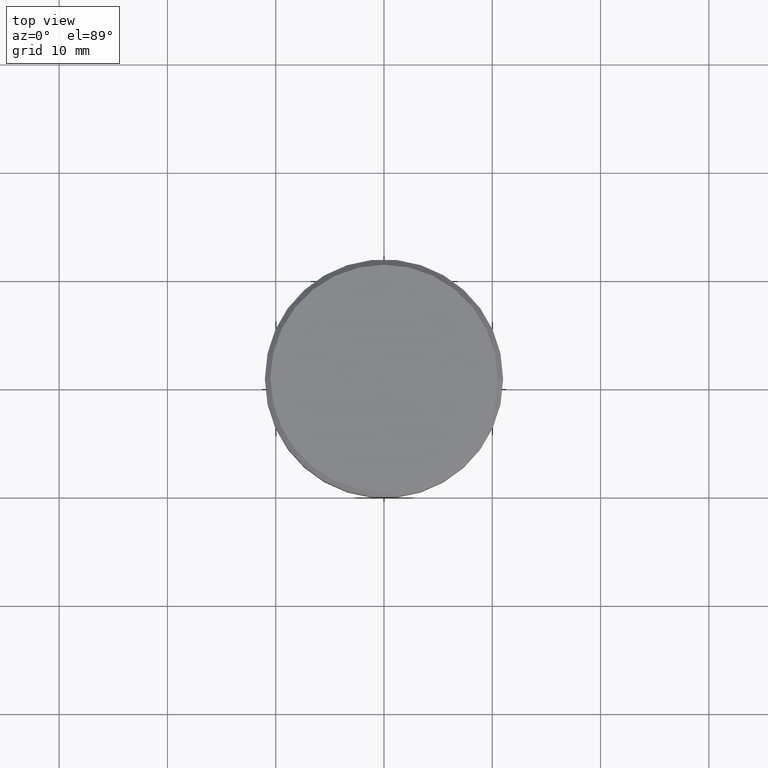
[diagram: clean part render]
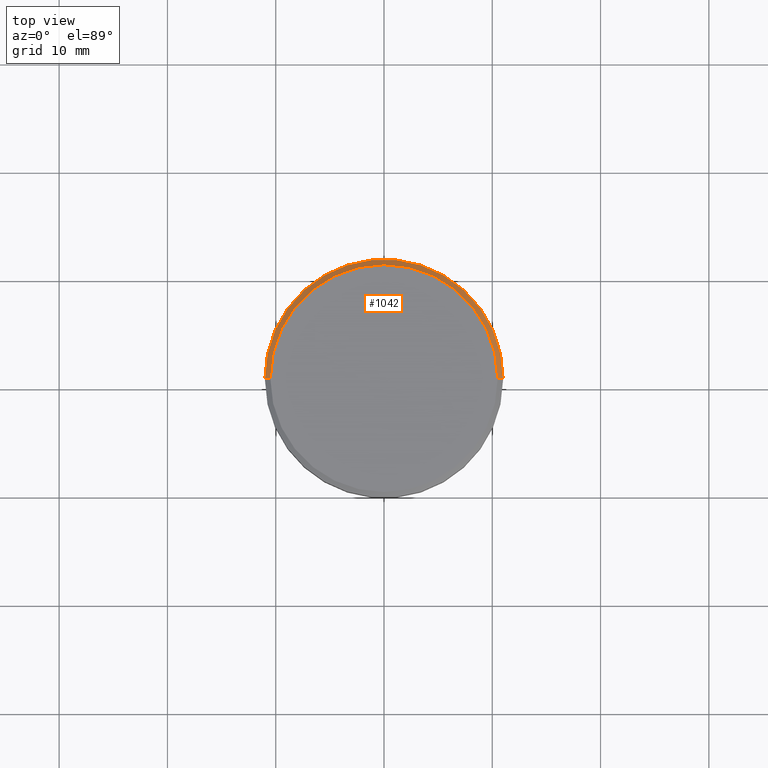
[diagram: same view with one face highlighted and labeled with its STEP entity id]
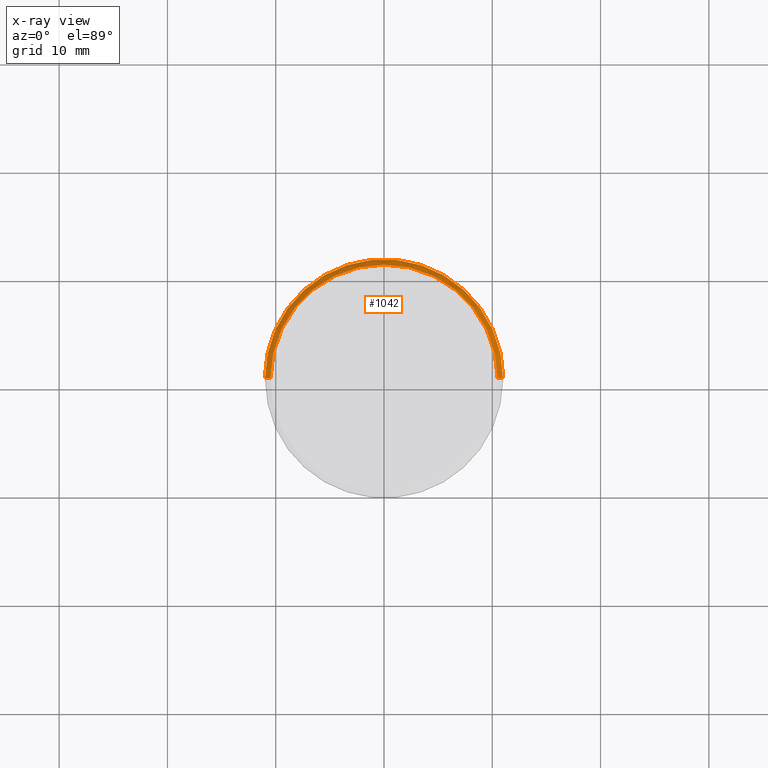
[diagram: x-ray of the same camera — body ghosted, the highlighted face saturated]
A machine part, top view. The second image highlights one B-rep face of the part: STEP entity #1042.
The next image is the same camera in x-ray: the body ghosted, the highlighted face saturated — about 0% of this face is hidden behind the body in this view.
In plain terms, the highlighted conical surface has half-angle 45 deg.
Its self-contained STEP definition (entity closure, byte-faithful):
#3 = DIRECTION ( 'NONE',  ( 0.000000000000000000, 0.000000000000000000, -1.000000000000000000 ) ) ;
#31 = CARTESIAN_POINT ( 'NONE',  ( 11.00000000000000178, 0.000000000000000000, -0.4999999999999952260 ) ) ;
#40 = CARTESIAN_POINT ( 'NONE',  ( 10.50000000000000888, 1.316495309083405209E-15, 0.000000000000000000 ) ) ;
#43 = CARTESIAN_POINT ( 'NONE',  ( -11.00000000000000178, 1.347111479062088602E-15, -0.4999999999999952260 ) ) ;
#101 = CARTESIAN_POINT ( 'NONE',  ( 0.000000000000000000, 0.000000000000000000, 0.000000000000000000 ) ) ;
#102 = DIRECTION ( 'NONE',  ( 1.000000000000000000, 0.000000000000000000, 0.000000000000000000 ) ) ;
#134 = CIRCLE ( 'NONE', #756, 11.00000000000000178 ) ;
#174 = EDGE_CURVE ( 'NONE', #434, #666, #1081, .T. ) ;
#208 = EDGE_CURVE ( 'NONE', #434, #386, #977, .T. ) ;
#276 = DIRECTION ( 'NONE',  ( 1.000000000000000000, 0.000000000000000000, 0.000000000000000000 ) ) ;
#282 = CARTESIAN_POINT ( 'NONE',  ( -10.50000000000000888, 0.000000000000000000, 0.000000000000000000 ) ) ;
#343 = EDGE_LOOP ( 'NONE', ( #1059, #692, #918, #1088 ) ) ;
#352 = AXIS2_PLACEMENT_3D ( 'NONE', #986, #1095, #913 ) ;
#385 = CARTESIAN_POINT ( 'NONE',  ( -10.50000000000000888, 0.000000000000000000, 0.000000000000000000 ) ) ;
#386 = VERTEX_POINT ( 'NONE', #385 ) ;
#429 = AXIS2_PLACEMENT_3D ( 'NONE', #101, #613, #276 ) ;
#434 = VERTEX_POINT ( 'NONE', #40 ) ;
#542 = FACE_OUTER_BOUND ( 'NONE', #343, .T. ) ;
#558 = VECTOR ( 'NONE', #1117, 1000.000000000000114 ) ;
#565 = EDGE_CURVE ( 'NONE', #386, #787, #1010, .T. ) ;
#613 = DIRECTION ( 'NONE',  ( -0.000000000000000000, -0.000000000000000000, 1.000000000000000000 ) ) ;
#666 = VERTEX_POINT ( 'NONE', #31 ) ;
#692 = ORIENTED_EDGE ( 'NONE', *, *, #174, .T. ) ;
#756 = AXIS2_PLACEMENT_3D ( 'NONE', #809, #3, #102 ) ;
#787 = VERTEX_POINT ( 'NONE', #43 ) ;
#809 = CARTESIAN_POINT ( 'NONE',  ( 0.000000000000000000, 0.000000000000000000, -0.4999999999999952260 ) ) ;
#913 = DIRECTION ( 'NONE',  ( -1.000000000000000000, 0.000000000000000000, 0.000000000000000000 ) ) ;
#918 = ORIENTED_EDGE ( 'NONE', *, *, #1086, .F. ) ;
#972 = CONICAL_SURFACE ( 'NONE', #352, 10.50000000000000888, 0.7853981633974447263 ) ;
#977 = CIRCLE ( 'NONE', #429, 10.50000000000000888 ) ;
#984 = CARTESIAN_POINT ( 'NONE',  ( 10.50000000000000888, 1.285879139104722014E-15, 0.000000000000000000 ) ) ;
#986 = CARTESIAN_POINT ( 'NONE',  ( 0.000000000000000000, 0.000000000000000000, 0.000000000000000000 ) ) ;
#1010 = LINE ( 'NONE', #282, #558 ) ;
#1042 = ADVANCED_FACE ( 'NONE', ( #542 ), #972, .T. ) ;
#1059 = ORIENTED_EDGE ( 'NONE', *, *, #208, .F. ) ;
#1081 = LINE ( 'NONE', #984, #1160 ) ;
#1086 = EDGE_CURVE ( 'NONE', #787, #666, #134, .T. ) ;
#1088 = ORIENTED_EDGE ( 'NONE', *, *, #565, .F. ) ;
#1091 = DIRECTION ( 'NONE',  ( 0.7071067811865451302, 8.659560562354903276E-17, -0.7071067811865500152 ) ) ;
#1095 = DIRECTION ( 'NONE',  ( 0.000000000000000000, 0.000000000000000000, -1.000000000000000000 ) ) ;
#1117 = DIRECTION ( 'NONE',  ( -0.7071067811865451302, 0.000000000000000000, -0.7071067811865500152 ) ) ;
#1160 = VECTOR ( 'NONE', #1091, 1000.000000000000114 ) ;